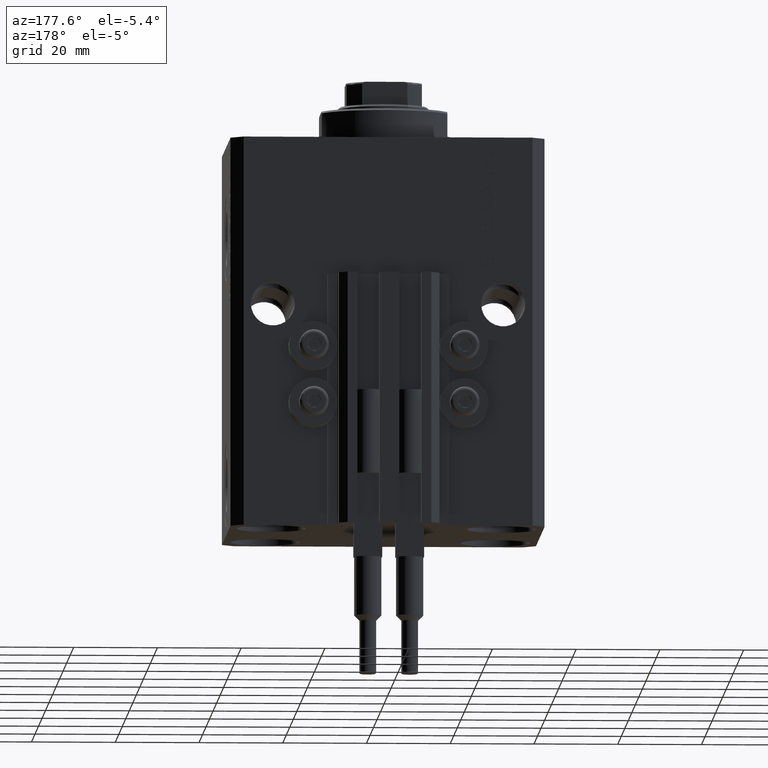
[diagram: clean part render]
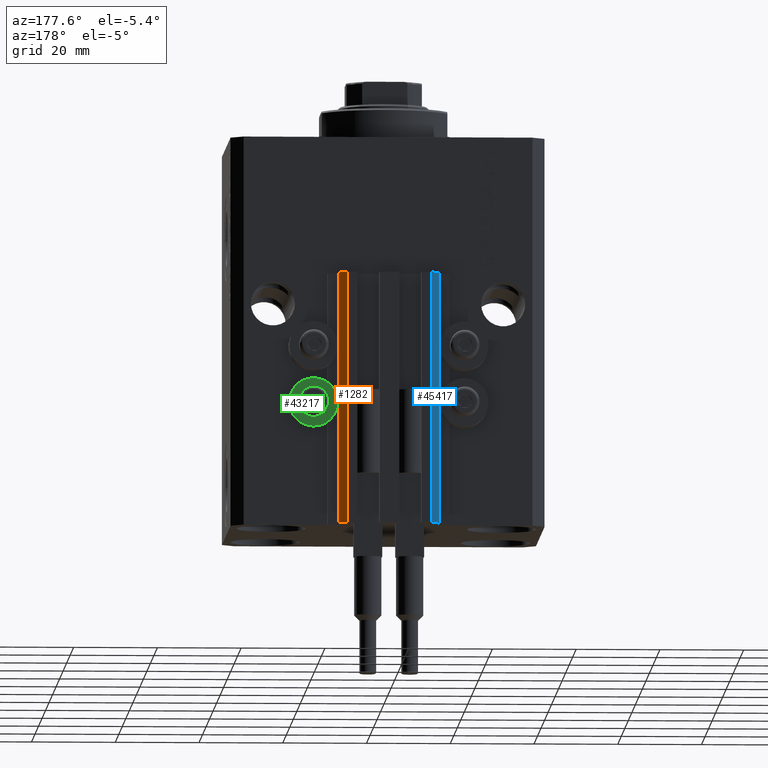
[diagram: same view with three faces highlighted in distinct colors, each labeled with its STEP entity id]
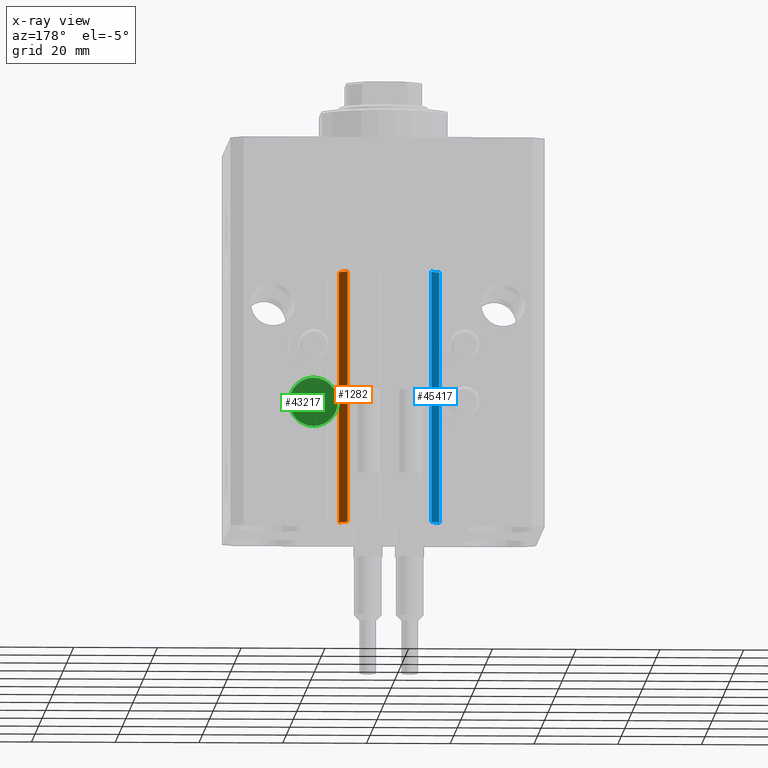
[diagram: x-ray of the same camera — body ghosted, the three highlighted faces saturated]
A machine part, auxiliary view with three faces highlighted in distinct colors.
The next image is the same camera in x-ray (body ghosted, the three faces saturated) — at least one of them is partly hidden behind the body in this view.
Their STEP definitions:

[orange] entity #1282 — the highlighted planar face has unit normal (0.7071, 0.7071, 0).
#837 = DIRECTION ( 'NONE',  ( 0.000000000000000000, 0.000000000000000000, 1.000000000000000000 ) ) ;
#1282 = ADVANCED_FACE ( 'NONE', ( #8769 ), #27523, .T. ) ;
#1323 = CARTESIAN_POINT ( 'NONE',  ( 12.00000000000000000, 33.50000000000001421, -93.00000000000000000 ) ) ;
#2410 = CARTESIAN_POINT ( 'NONE',  ( 12.00000000000000000, 33.50000000000001421, -93.00000000000000000 ) ) ;
#3771 = ORIENTED_EDGE ( 'NONE', *, *, #46964, .T. ) ;
#3786 = CARTESIAN_POINT ( 'NONE',  ( 9.999999999999998224, 35.50000000000001421, -93.00000000000000000 ) ) ;
#4180 = VERTEX_POINT ( 'NONE', #34681 ) ;
#4636 = CARTESIAN_POINT ( 'NONE',  ( 12.00000000000000000, 33.50000000000001421, -33.00000000000000000 ) ) ;
#4962 = ORIENTED_EDGE ( 'NONE', *, *, #38403, .T. ) ;
#5309 = AXIS2_PLACEMENT_3D ( 'NONE', #15838, #42868, #23404 ) ;
#5453 = LINE ( 'NONE', #1323, #48053 ) ;
#6826 = DIRECTION ( 'NONE',  ( 0.000000000000000000, 0.000000000000000000, 1.000000000000000000 ) ) ;
#8769 = FACE_OUTER_BOUND ( 'NONE', #13424, .T. ) ;
#8803 = VERTEX_POINT ( 'NONE', #2410 ) ;
#13424 = EDGE_LOOP ( 'NONE', ( #33449, #32287, #4962, #3771 ) ) ;
#14915 = DIRECTION ( 'NONE',  ( -0.7071067811865474617, 0.7071067811865474617, 0.000000000000000000 ) ) ;
#15838 = CARTESIAN_POINT ( 'NONE',  ( 12.00000000000000000, 33.50000000000001421, -93.00000000000000000 ) ) ;
#20395 = VECTOR ( 'NONE', #14915, 1000.000000000000114 ) ;
#23404 = DIRECTION ( 'NONE',  ( -0.7071067811865474617, 0.7071067811865474617, 0.000000000000000000 ) ) ;
#23637 = EDGE_CURVE ( 'NONE', #37011, #4180, #26122, .T. ) ;
#23855 = DIRECTION ( 'NONE',  ( -0.7071067811865474617, 0.7071067811865474617, 0.000000000000000000 ) ) ;
#26122 = LINE ( 'NONE', #44866, #20395 ) ;
#26304 = VERTEX_POINT ( 'NONE', #3786 ) ;
#27523 = PLANE ( 'NONE',  #5309 ) ;
#29454 = CARTESIAN_POINT ( 'NONE',  ( 9.999999999999998224, 35.50000000000001421, -93.00000000000000000 ) ) ;
#31127 = CARTESIAN_POINT ( 'NONE',  ( 12.00000000000000000, 33.50000000000001421, -93.00000000000000000 ) ) ;
#32287 = ORIENTED_EDGE ( 'NONE', *, *, #43476, .F. ) ;
#33449 = ORIENTED_EDGE ( 'NONE', *, *, #23637, .F. ) ;
#33575 = LINE ( 'NONE', #29454, #45567 ) ;
#34681 = CARTESIAN_POINT ( 'NONE',  ( 9.999999999999998224, 35.50000000000001421, -33.00000000000000000 ) ) ;
#37011 = VERTEX_POINT ( 'NONE', #4636 ) ;
#37083 = VECTOR ( 'NONE', #23855, 1000.000000000000114 ) ;
#38403 = EDGE_CURVE ( 'NONE', #8803, #26304, #38442, .T. ) ;
#38442 = LINE ( 'NONE', #31127, #37083 ) ;
#42868 = DIRECTION ( 'NONE',  ( 0.7071067811865475727, 0.7071067811865475727, -0.000000000000000000 ) ) ;
#43476 = EDGE_CURVE ( 'NONE', #8803, #37011, #5453, .T. ) ;
#44866 = CARTESIAN_POINT ( 'NONE',  ( 12.00000000000000000, 33.50000000000001421, -33.00000000000000000 ) ) ;
#45567 = VECTOR ( 'NONE', #6826, 1000.000000000000000 ) ;
#46964 = EDGE_CURVE ( 'NONE', #26304, #4180, #33575, .T. ) ;
#48053 = VECTOR ( 'NONE', #837, 1000.000000000000000 ) ;

[blue] entity #45417 — the highlighted planar face has unit normal (-0.7071, 0.7071, 0).
#217 = CARTESIAN_POINT ( 'NONE',  ( -12.00000000000000000, 33.49999999999998579, -93.00000000000000000 ) ) ;
#411 = CARTESIAN_POINT ( 'NONE',  ( -10.00000000000000000, 35.50000000000000000, -33.00000000000000000 ) ) ;
#528 = LINE ( 'NONE', #19053, #43993 ) ;
#2468 = CARTESIAN_POINT ( 'NONE',  ( -10.00000000000000000, 35.50000000000000000, -33.00000000000000000 ) ) ;
#3069 = LINE ( 'NONE', #26211, #46351 ) ;
#3390 = VERTEX_POINT ( 'NONE', #21080 ) ;
#9734 = VECTOR ( 'NONE', #16028, 1000.000000000000227 ) ;
#10398 = FACE_OUTER_BOUND ( 'NONE', #31319, .T. ) ;
#15023 = EDGE_CURVE ( 'NONE', #35484, #46030, #528, .T. ) ;
#16025 = DIRECTION ( 'NONE',  ( -0.7071067811865460184, -0.7071067811865490160, 0.000000000000000000 ) ) ;
#16028 = DIRECTION ( 'NONE',  ( -0.7071067811865460184, -0.7071067811865490160, 0.000000000000000000 ) ) ;
#16682 = ORIENTED_EDGE ( 'NONE', *, *, #17288, .T. ) ;
#17254 = PLANE ( 'NONE',  #42400 ) ;
#17288 = EDGE_CURVE ( 'NONE', #3390, #35484, #30128, .T. ) ;
#17953 = DIRECTION ( 'NONE',  ( 0.000000000000000000, 0.000000000000000000, 1.000000000000000000 ) ) ;
#19053 = CARTESIAN_POINT ( 'NONE',  ( -12.00000000000000000, 33.49999999999998579, -93.00000000000000000 ) ) ;
#21080 = CARTESIAN_POINT ( 'NONE',  ( -10.00000000000000000, 35.50000000000000000, -93.00000000000000000 ) ) ;
#21131 = CARTESIAN_POINT ( 'NONE',  ( -10.00000000000000000, 35.50000000000000000, -93.00000000000000000 ) ) ;
#25031 = DIRECTION ( 'NONE',  ( -0.7071067811865460184, -0.7071067811865490160, 0.000000000000000000 ) ) ;
#25519 = DIRECTION ( 'NONE',  ( -0.7071067811865490160, 0.7071067811865460184, 0.000000000000000000 ) ) ;
#26211 = CARTESIAN_POINT ( 'NONE',  ( -10.00000000000000000, 35.50000000000000000, -93.00000000000000000 ) ) ;
#26498 = CARTESIAN_POINT ( 'NONE',  ( -10.00000000000000000, 35.50000000000000000, -93.00000000000000000 ) ) ;
#27096 = ORIENTED_EDGE ( 'NONE', *, *, #36212, .F. ) ;
#30128 = LINE ( 'NONE', #26498, #9734 ) ;
#31319 = EDGE_LOOP ( 'NONE', ( #43138, #27096, #16682, #47038 ) ) ;
#31354 = CARTESIAN_POINT ( 'NONE',  ( -12.00000000000000000, 33.49999999999998579, -33.00000000000000000 ) ) ;
#35484 = VERTEX_POINT ( 'NONE', #217 ) ;
#36212 = EDGE_CURVE ( 'NONE', #3390, #44755, #3069, .T. ) ;
#37073 = DIRECTION ( 'NONE',  ( 0.000000000000000000, 0.000000000000000000, 1.000000000000000000 ) ) ;
#37879 = VECTOR ( 'NONE', #16025, 1000.000000000000227 ) ;
#38840 = EDGE_CURVE ( 'NONE', #44755, #46030, #45242, .T. ) ;
#42400 = AXIS2_PLACEMENT_3D ( 'NONE', #21131, #25519, #25031 ) ;
#43138 = ORIENTED_EDGE ( 'NONE', *, *, #38840, .F. ) ;
#43993 = VECTOR ( 'NONE', #37073, 1000.000000000000000 ) ;
#44755 = VERTEX_POINT ( 'NONE', #2468 ) ;
#45242 = LINE ( 'NONE', #411, #37879 ) ;
#45417 = ADVANCED_FACE ( 'NONE', ( #10398 ), #17254, .T. ) ;
#46030 = VERTEX_POINT ( 'NONE', #31354 ) ;
#46351 = VECTOR ( 'NONE', #17953, 1000.000000000000000 ) ;
#47038 = ORIENTED_EDGE ( 'NONE', *, *, #15023, .T. ) ;

[green] entity #43217 — the highlighted planar face has unit normal (0, -1, 0).
#1622 = EDGE_CURVE ( 'NONE', #35830, #42267, #12374, .T. ) ;
#2568 = EDGE_CURVE ( 'NONE', #39044, #43569, #45012, .T. ) ;
#4685 = CARTESIAN_POINT ( 'NONE',  ( 18.00000000000000355, 32.49999999996100541, -58.20000000000000284 ) ) ;
#9074 = AXIS2_PLACEMENT_3D ( 'NONE', #19115, #22535, #18152 ) ;
#9144 = AXIS2_PLACEMENT_3D ( 'NONE', #38227, #45056, #41386 ) ;
#10802 = AXIS2_PLACEMENT_3D ( 'NONE', #24673, #17134, #40224 ) ;
#12249 = EDGE_CURVE ( 'NONE', #42267, #35830, #35537, .T. ) ;
#12374 = CIRCLE ( 'NONE', #15478, 5.799999999999999822 ) ;
#14218 = EDGE_LOOP ( 'NONE', ( #30860, #44163 ) ) ;
#15478 = AXIS2_PLACEMENT_3D ( 'NONE', #19686, #42314, #34770 ) ;
#16202 = CARTESIAN_POINT ( 'NONE',  ( 18.00000000000000355, 32.49999999996100541, -62.00000000000000000 ) ) ;
#17134 = DIRECTION ( 'NONE',  ( 0.000000000000000000, 1.000000000000000000, 0.000000000000000000 ) ) ;
#18021 = EDGE_LOOP ( 'NONE', ( #34154, #22118 ) ) ;
#18152 = DIRECTION ( 'NONE',  ( 0.000000000000000000, 0.000000000000000000, -1.000000000000000000 ) ) ;
#19115 = CARTESIAN_POINT ( 'NONE',  ( 18.00000000000000355, 32.49999999996100541, -64.00000000000000000 ) ) ;
#19686 = CARTESIAN_POINT ( 'NONE',  ( 18.00000000000000355, 32.49999999996100541, -64.00000000000000000 ) ) ;
#22118 = ORIENTED_EDGE ( 'NONE', *, *, #1622, .T. ) ;
#22535 = DIRECTION ( 'NONE',  ( 0.000000000000000000, 1.000000000000000000, 0.000000000000000000 ) ) ;
#24673 = CARTESIAN_POINT ( 'NONE',  ( 18.00000000000000355, 32.49999999996100541, -64.00000000000000000 ) ) ;
#26547 = FACE_OUTER_BOUND ( 'NONE', #18021, .T. ) ;
#28219 = CARTESIAN_POINT ( 'NONE',  ( 18.00000000000000355, 32.49999999996100541, -69.79999999999999716 ) ) ;
#29061 = CARTESIAN_POINT ( 'NONE',  ( 18.00000000000000355, 32.49999999996100541, -64.00000000000000000 ) ) ;
#30112 = AXIS2_PLACEMENT_3D ( 'NONE', #29061, #43926, #35662 ) ;
#30860 = ORIENTED_EDGE ( 'NONE', *, *, #43702, .F. ) ;
#33430 = CARTESIAN_POINT ( 'NONE',  ( 18.00000000000000355, 32.49999999996100541, -66.00000000000000000 ) ) ;
#34089 = FACE_BOUND ( 'NONE', #14218, .T. ) ;
#34154 = ORIENTED_EDGE ( 'NONE', *, *, #12249, .T. ) ;
#34770 = DIRECTION ( 'NONE',  ( 0.000000000000000000, 0.000000000000000000, -1.000000000000000000 ) ) ;
#35537 = CIRCLE ( 'NONE', #9074, 5.799999999999999822 ) ;
#35662 = DIRECTION ( 'NONE',  ( 0.000000000000000000, 0.000000000000000000, -1.000000000000000000 ) ) ;
#35830 = VERTEX_POINT ( 'NONE', #4685 ) ;
#38227 = CARTESIAN_POINT ( 'NONE',  ( 12.20000000000000284, 32.49999999996100541, -64.00000000000000000 ) ) ;
#39044 = VERTEX_POINT ( 'NONE', #33430 ) ;
#40224 = DIRECTION ( 'NONE',  ( 0.000000000000000000, 0.000000000000000000, -1.000000000000000000 ) ) ;
#41386 = DIRECTION ( 'NONE',  ( -0.000000000000000000, 0.000000000000000000, 1.000000000000000000 ) ) ;
#41817 = CIRCLE ( 'NONE', #30112, 2.000000000000001776 ) ;
#42267 = VERTEX_POINT ( 'NONE', #28219 ) ;
#42314 = DIRECTION ( 'NONE',  ( 0.000000000000000000, 1.000000000000000000, 0.000000000000000000 ) ) ;
#43217 = ADVANCED_FACE ( 'NONE', ( #34089, #26547 ), #45791, .F. ) ;
#43569 = VERTEX_POINT ( 'NONE', #16202 ) ;
#43702 = EDGE_CURVE ( 'NONE', #43569, #39044, #41817, .T. ) ;
#43926 = DIRECTION ( 'NONE',  ( 0.000000000000000000, 1.000000000000000000, 0.000000000000000000 ) ) ;
#44163 = ORIENTED_EDGE ( 'NONE', *, *, #2568, .F. ) ;
#45012 = CIRCLE ( 'NONE', #10802, 2.000000000000001776 ) ;
#45056 = DIRECTION ( 'NONE',  ( 0.000000000000000000, -1.000000000000000000, 0.000000000000000000 ) ) ;
#45791 = PLANE ( 'NONE',  #9144 ) ;